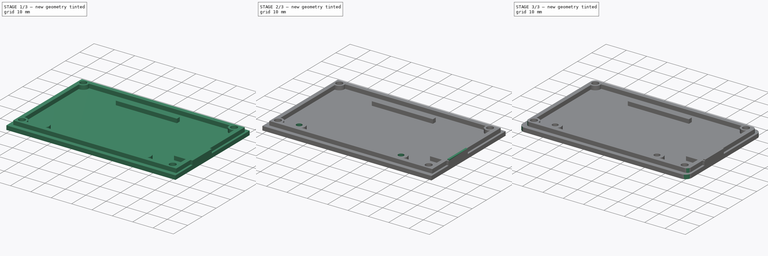
[diagram: build sequence overview — one tinted view per stage of 3, left to right]
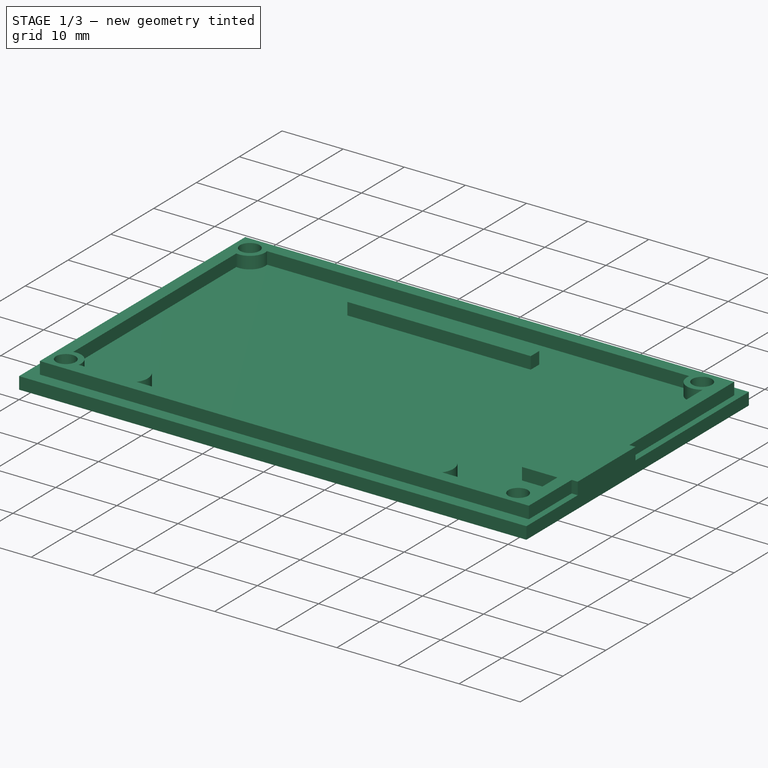
[diagram: stage 1 of 3 — iso view after this stage's code; geometry added in this stage tinted green]
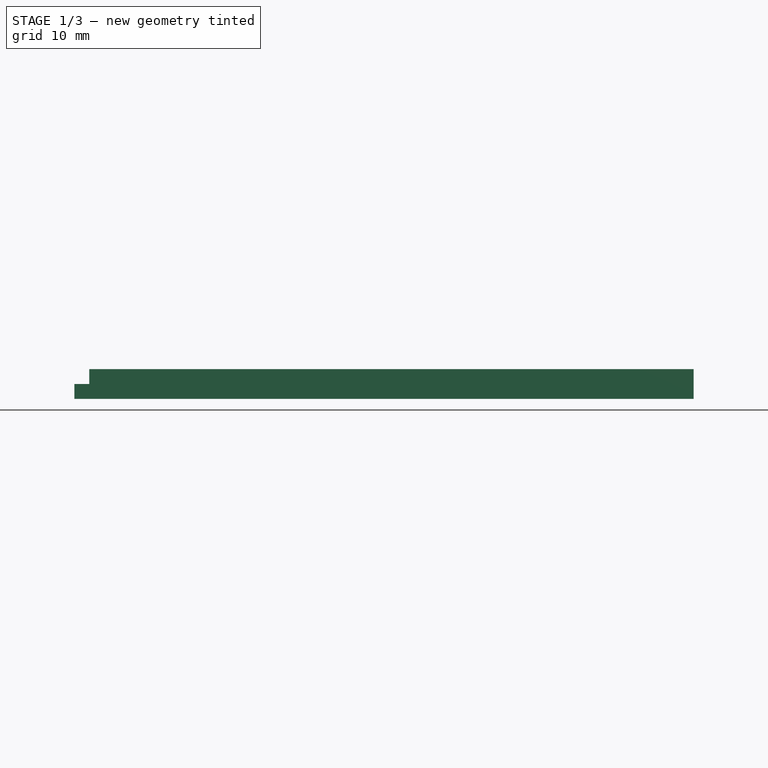
[diagram: stage 1 of 3 — front view after this stage's code; geometry added in this stage tinted green]
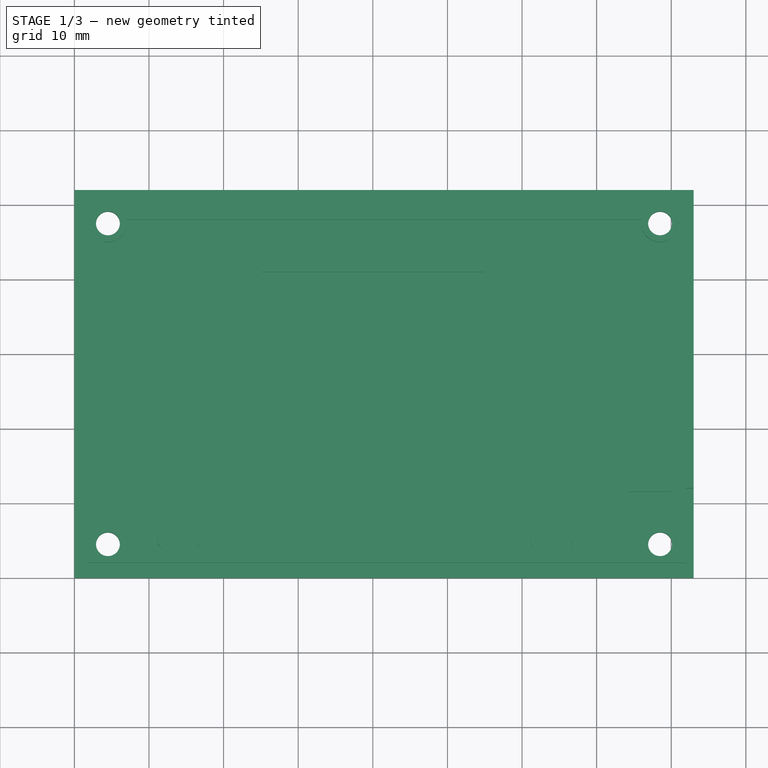
[diagram: stage 1 of 3 — top view after this stage's code; geometry added in this stage tinted green]
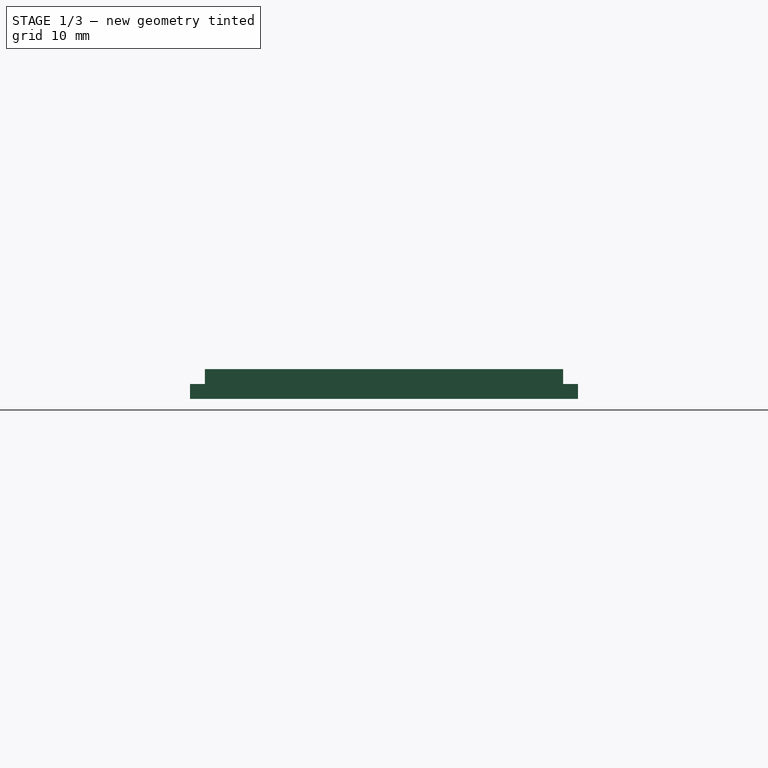
[diagram: stage 1 of 3 — right view after this stage's code; geometry added in this stage tinted green]
FCSTD DOCUMENT  (FreeCAD 0.20R29603 (Git))
Label: mir base_small
License: All rights reserved
LicenseURL: http://en.wikipedia.org/wiki/All_rights_reserved
objects: Sketcher::SketchObject×5, PartDesign::Pad×3, PartDesign::Pocket×2, PartDesign::Fillet×2, PartDesign::Chamfer×1, PartDesign::Body×1
note: 22 computed .brp shape members not serialized (recipe doc carries the construction recipe); baked Part::Feature solids carry a one-line shape summary decoded from their .brp

FEATURE [Sketcher::SketchObject] Sketch  label="SK_Base"
  FullyConstrained = true
  MapMode = 5
  Support = -> [XY_Plane]
  sketch-geometry (4):
    g0: LineSegment StartX=0 StartY=0 StartZ=0 EndX=83 EndY=0 EndZ=0
    g1: LineSegment StartX=83 StartY=0 StartZ=0 EndX=83 EndY=52 EndZ=0
    g2: LineSegment StartX=83 StartY=52 StartZ=0 EndX=0 EndY=52 EndZ=0
    g3: LineSegment StartX=0 StartY=52 StartZ=0 EndX=0 EndY=0 EndZ=0
  constraints (11):
    c: Coincident(g0,g1)
    c: Coincident(g1,g2)
    c: Coincident(g2,g3)
    c: Coincident(g3,g0)
    c: Horizontal(g0)
    c: Horizontal(g2)
    c: Vertical(g1)
    c: Vertical(g3)
    c: Coincident(g0,g-1)
    c: DistanceY(g3,g3) = 52
    c: DistanceX(g2,g2) = 83
FEATURE [Sketcher::SketchObject] Sketch001  label="SK_Erhöhung"
  FullyConstrained = true
  MapMode = 5
  Support = -> [XY_Plane]
  sketch-geometry (29):
    g0: LineSegment StartX=2 StartY=2 StartZ=0 EndX=2 EndY=50 EndZ=0
    g1: LineSegment StartX=2 StartY=50 StartZ=0 EndX=82 EndY=50 EndZ=0
    g2: LineSegment StartX=82 StartY=50 StartZ=0 EndX=82 EndY=25.5 EndZ=0
    g3: LineSegment StartX=82 StartY=25.5 StartZ=0 EndX=83 EndY=25.5 EndZ=0
    g4: LineSegment StartX=83 StartY=25.5 StartZ=0 EndX=83 EndY=12 EndZ=0
    g5: LineSegment StartX=83 StartY=12 StartZ=0 EndX=82 EndY=12 EndZ=0
    g6: LineSegment StartX=82 StartY=12 StartZ=0 EndX=82 EndY=2 EndZ=0
    g7: LineSegment StartX=82 StartY=2 StartZ=0 EndX=2 EndY=2 EndZ=0
    g8: LineSegment StartX=6.95 StartY=47.9975 StartZ=0 EndX=76.05 EndY=47.9975 EndZ=0
    g9: LineSegment StartX=76.05 StartY=4.00251 StartZ=0 EndX=66.4019 EndY=4.00251 EndZ=0
    g10: Circle CenterX=35 CenterY=46 CenterZ=0 NormalX=0 NormalY=0 NormalZ=1 AngleXU=0 Radius=1
    g11: LineSegment StartX=25 StartY=43 StartZ=0 EndX=55 EndY=43 EndZ=0
    g12: LineSegment StartX=55 StartY=43 StartZ=0 EndX=55 EndY=41 EndZ=0
    g13: LineSegment StartX=55 StartY=41 StartZ=0 EndX=25 EndY=41 EndZ=0
    g14: LineSegment StartX=25 StartY=41 StartZ=0 EndX=25 EndY=43 EndZ=0
    g15: ArcOfCircle CenterX=14 CenterY=5.8 CenterZ=0 NormalX=0 NormalY=0 NormalZ=1 AngleXU=0 Radius=3 StartAngle=5.64073 EndAngle=10.0693
    g16: ArcOfCircle CenterX=64 CenterY=5.8 CenterZ=0 NormalX=0 NormalY=0 NormalZ=1 AngleXU=0 Radius=3 StartAngle=5.64073 EndAngle=10.0693
    g17: LineSegment StartX=80 StartY=25.05 StartZ=0 EndX=74.2 EndY=25.05 EndZ=0
    g18: LineSegment StartX=74.2 StartY=25.05 StartZ=0 EndX=74.2 EndY=11.55 EndZ=0
    g19: LineSegment StartX=74.2 StartY=11.55 StartZ=0 EndX=80 EndY=11.55 EndZ=0
    g20: LineSegment StartX=80 StartY=11.55 StartZ=0 EndX=80 EndY=6.5 EndZ=0
    g21: LineSegment StartX=11.6019 StartY=3.9975 StartZ=0 EndX=6.95188 EndY=3.9995 EndZ=0
    g22: LineSegment StartX=61.6019 StartY=3.9975 StartZ=0 EndX=16.4019 EndY=4.00251 EndZ=0
    g23: LineSegment StartX=80 StartY=25.05 StartZ=0 EndX=80 EndY=45.5 EndZ=0
    g24: ArcOfCircle CenterX=4.5 CenterY=47.5 CenterZ=0 NormalX=0 NormalY=0 NormalZ=1 AngleXU=0 Radius=2.5 StartAngle=4.51205 EndAngle=6.48352
    g25: ArcOfCircle CenterX=78.5 CenterY=4.5 CenterZ=0 NormalX=0 NormalY=0 NormalZ=1 AngleXU=0 Radius=2.5 StartAngle=0.927295 EndAngle=3.34193
    g26: ArcOfCircle CenterX=4.50249 CenterY=4.5 CenterZ=0 NormalX=0 NormalY=0 NormalZ=1 AngleXU=0 Radius=2.5 StartAngle=6.08162 EndAngle=8.05533
    g27: ArcOfCircle CenterX=78.5 CenterY=47.5 CenterZ=0 NormalX=0 NormalY=0 NormalZ=1 AngleXU=0 Radius=2.5 StartAngle=2.94126 EndAngle=5.35589
    g28: LineSegment StartX=4.00251 StartY=45.05 StartZ=0 EndX=4.00251 EndY=6.94949 EndZ=0
  constraints (93):
    c: Coincident(g0,g1)
    c: Horizontal(g1)
    c: Vertical(g2)
    c: Coincident(g2,g3)
    c: Horizontal(g3)
    c: Coincident(g3,g4)
    c: Coincident(g4,g5)
    c: Horizontal(g5)
    c: Coincident(g5,g6)
    c: Vertical(g6)
    c: Coincident(g6,g7)
    c: Coincident(g7,g0)
    c: Horizontal(g7)
    c: DistanceX(g1,g1) = 80
    c: DistanceY(g0,g0) = 48
    c: Equal(g1,g7)
    c: DistanceY(g6,g5) = 10
    c: Equal(g5,g3)
    c: Horizontal(g8)
    c: Horizontal(g9)
    c: DistanceY(g4,g4) = 13.5
    c: Diameter(g10) = 2
    c: DistanceX(g0,g10) = 33
    c: DistanceY(g10,g0) = 4
    c: Coincident(g11,g12)
    c: Coincident(g12,g13)
    c: Coincident(g13,g14)
    c: Coincident(g14,g11)
    c: Horizontal(g11)
    c: Horizontal(g13)
    c: Vertical(g12)
    c: Vertical(g14)
    c: DistanceY(g14,g14) = 2
    c: DistanceX(g11,g11) = 30
    c: DistanceY(g11,g10) = 3
    c: DistanceX(g11,g10) = 10
    c: Equal(g15,g16)
    c: Diameter(g15) = 6
    c: DistanceX(g15,g10) = 21
    c: DistanceY(g15,g10) = 40.2
    c: Horizontal(g15,g16)
    c: DistanceX(g15,g16) = 50
    c: Horizontal(g17)
    c: Coincident(g17,g18)
    c: Vertical(g18)
    c: Coincident(g18,g19)
    c: Horizontal(g19)
    c: Coincident(g20,g19)
    c: Equal(g18,g4)
    c: DistanceX(g17,g17) = 5.8
    c: Equal(g19,g17)
    c: DistanceY(g-1,g0) = 2
    c: DistanceX(g-1,g0) = 2
    c: Vertical(g0)
    c: Vertical(g20)
    c: DistanceX(g2,g3) = 1
    c: Coincident(g22,g15)
    c: Coincident(g21,g15)
    c: Coincident(g16,g22)
    c: Coincident(g16,g9)
    c: DistanceX(g22,g22) = 45.2
    c: DistanceX(g15,g15) = 4.8
    c: DistanceX(g16,g9) = 4.8
    c: Coincident(g1,g2)
    c: Coincident(g23,g17)
    c: Equal(g24,g26)
    c: Equal(g24,g25)
    c: Diameter(g24) = 5
    c: DistanceY(g24,g0) = 2.5
    c: DistanceX(g0,g24) = 2.5
    c: Horizontal(g26,g25)
    c: DistanceY(g0,g26) = 2.5
    c: Coincident(g24,g8)
    c: Coincident(g27,g23)
    c: Coincident(g27,g8)
    c: Coincident(g20,g25)
    c: Coincident(g25,g9)
    c: Coincident(g21,g26)
    c: Vertical(g25,g27)
    c: DistanceX(g21,g15) = 4.65
    c: DistanceY(g20,g20) = 5.05
    c: Coincident(g28,g24)
    c: Coincident(g28,g26)
    c: Vertical(g28)
    c: Equal(g4,g18)
    c: DistanceX(g27,g1) = 3.5
    c: Vertical(g9,g8)
    c: Horizontal(g24,g27)
    c: DistanceX(g8,g27) = 2.45
    c: DistanceY(g23,g27) = 2
    c: DistanceY(g25,g20) = 2
    c: Vertical(g23)
    c: DistanceY(g24,g24) = 2.45
FEATURE [Sketcher::SketchObject] Sketch003  label="SK_Schrauben_PCB"
  AttachmentOffset = pos=(0,0,0.5) rot=(0,0,1;0rad)
  ExternalGeometry = -> [Sketch001]
  FullyConstrained = true
  MapMode = 5
  Placement = pos=(0,0,0.5) rot=(0,0,1;0rad)
  Support = -> [XY_Plane]
  sketch-geometry (2):
    g0: Circle CenterX=14 CenterY=5.8 CenterZ=0 NormalX=0 NormalY=0 NormalZ=1 AngleXU=0 Radius=1.375
    g1: Circle CenterX=64 CenterY=5.8 CenterZ=0 NormalX=0 NormalY=0 NormalZ=1 AngleXU=0 Radius=1.375
  constraints (4):
    c: Equal(g0,g1)
    c: Diameter(g0) = 2.75
    c: Coincident(g0,g-3)
    c: Coincident(g1,g-4)
FEATURE [Sketcher::SketchObject] Sketch004  label="SK_Lippe"
  ExternalGeometry = -> [Sketch001]
  FullyConstrained = true
  MapMode = 5
  Support = -> [XY_Plane]
  sketch-geometry (4):
    g0: LineSegment StartX=83 StartY=25.5 StartZ=0 EndX=82 EndY=25.5 EndZ=0
    g1: LineSegment StartX=82 StartY=25.5 StartZ=0 EndX=82 EndY=12.5 EndZ=0
    g2: LineSegment StartX=82 StartY=12.5 StartZ=0 EndX=83 EndY=12.5 EndZ=0
    g3: LineSegment StartX=83 StartY=12.5 StartZ=0 EndX=83 EndY=25.5 EndZ=0
  constraints (11):
    c: Coincident(g0,g1)
    c: Coincident(g1,g2)
    c: Coincident(g2,g3)
    c: Coincident(g3,g0)
    c: Horizontal(g0)
    c: Horizontal(g2)
    c: Vertical(g1)
    c: Vertical(g3)
    c: Coincident(g0,g-3)
    c: DistanceX(g0,g0) = 1
    c: DistanceY(g1,g1) = 13
FEATURE [PartDesign::Pad] Pad  label="Base"
  Direction = (0,0,1)
  Length = 2
  Length2 = 10
  Profile = -> Sketch
  ReferenceAxis = -> Sketch [N_Axis]
  Refine = true
  Reversed = true
  Type = 0
FEATURE [PartDesign::Pad] Pad001  label="Erhgöhung"
  BaseFeature = -> Pad
  Direction = (0,0,1)
  Length = 2
  Length2 = 10
  Profile = -> Sketch001
  ReferenceAxis = -> Sketch001 [N_Axis]
  Refine = true
  Type = 0
FEATURE [Sketcher::SketchObject] Sketch005  label="SK_Schraubendurchgang"
  ExternalGeometry = -> [Sketch001]
  FullyConstrained = true
  MapMode = 5
  Support = -> [XY_Plane]
  sketch-geometry (4):
    g0: Circle CenterX=4.5 CenterY=47.5 CenterZ=0 NormalX=0 NormalY=0 NormalZ=1 AngleXU=0 Radius=1.6
    g1: Circle CenterX=78.5 CenterY=47.5 CenterZ=0 NormalX=0 NormalY=0 NormalZ=1 AngleXU=0 Radius=1.6
    g2: Circle CenterX=78.5 CenterY=4.5 CenterZ=0 NormalX=0 NormalY=0 NormalZ=1 AngleXU=0 Radius=1.6
    g3: Circle CenterX=4.5 CenterY=4.5 CenterZ=0 NormalX=0 NormalY=0 NormalZ=1 AngleXU=0 Radius=1.6
  constraints (12):
    c: Equal(g0,g1)
    c: Equal(g0,g2)
    c: Equal(g0,g3)
    c: Diameter(g0) = 3.2
    c: DistanceX(g-4,g0) = 2.5
    c: DistanceY(g0,g-4) = 2.5
    c: DistanceY(g-3,g3) = 2.5
    c: Vertical(g0,g3)
    c: DistanceX(g1,g-4) = 3.5
    c: Horizontal(g0,g1)
    c: Vertical(g1,g2)
    c: Horizontal(g3,g2)
FEATURE [PartDesign::Pocket] Pocket  label="Schraubendurchgang"
  BaseFeature = -> Pad001
  Direction = (0,0,-1)
  Length = 5
  Length2 = 5
  Profile = -> Sketch005
  ReferenceAxis = -> Sketch005 [N_Axis]
  Refine = true
  Type = 4
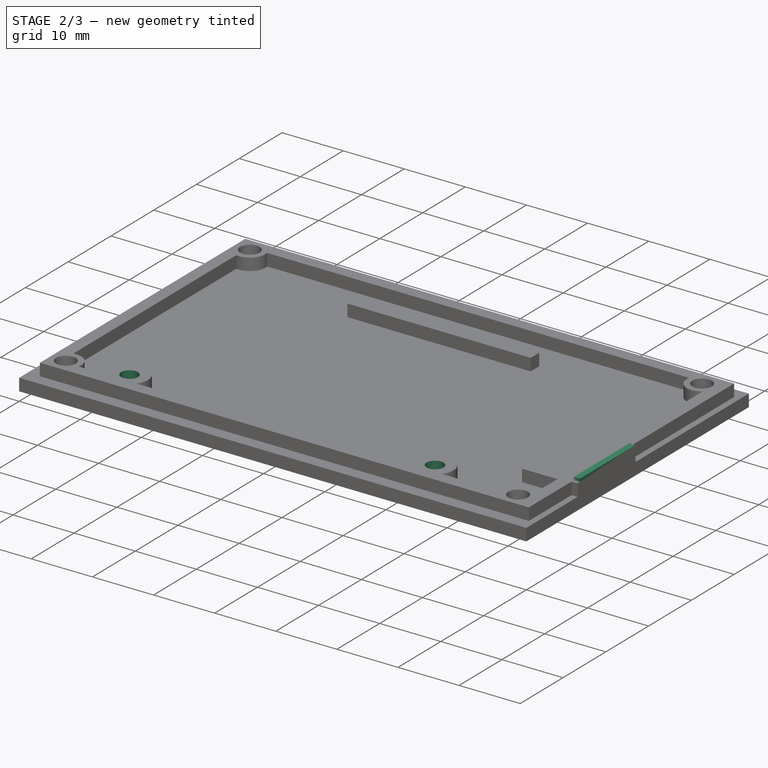
[diagram: stage 2 of 3 — iso view after this stage's code; geometry added in this stage tinted green]
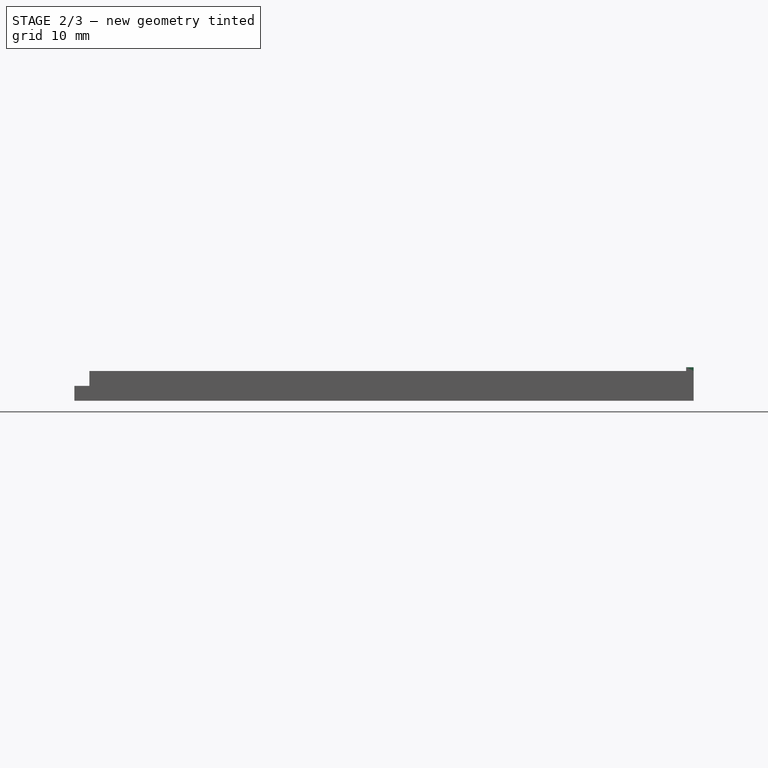
[diagram: stage 2 of 3 — front view after this stage's code; geometry added in this stage tinted green]
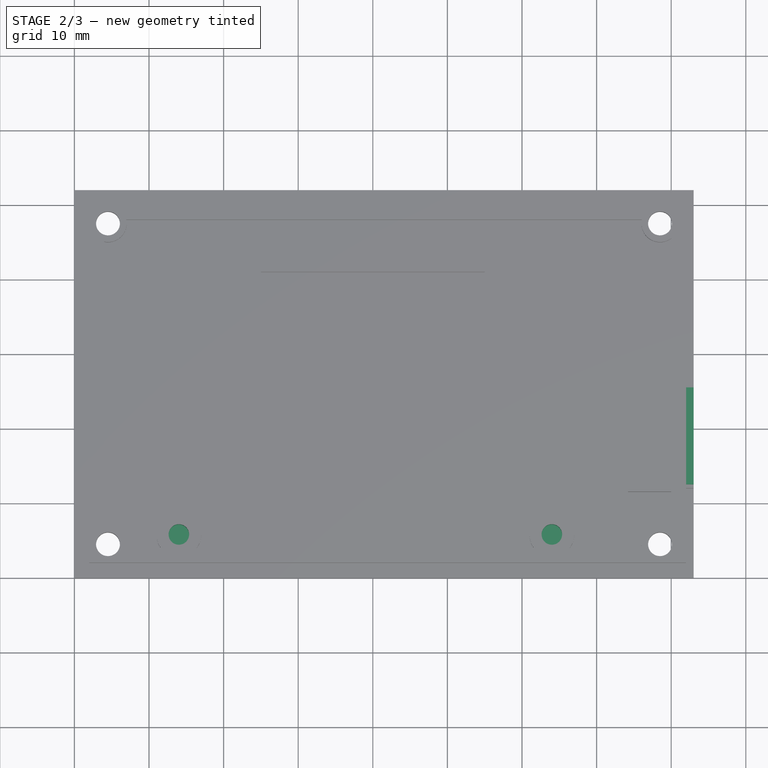
[diagram: stage 2 of 3 — top view after this stage's code; geometry added in this stage tinted green]
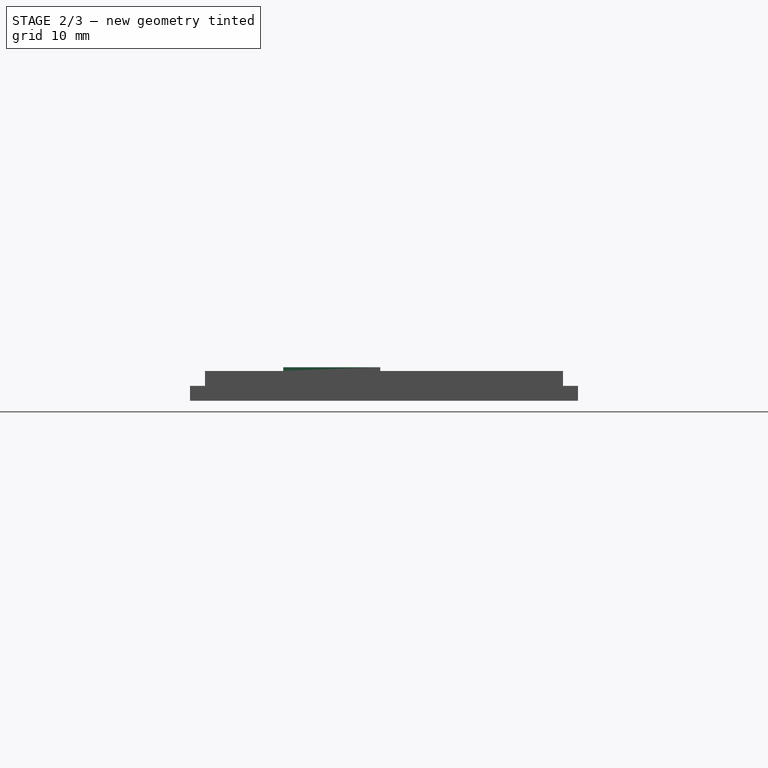
[diagram: stage 2 of 3 — right view after this stage's code; geometry added in this stage tinted green]
FEATURE [PartDesign::Pocket] Pocket001  label="Schrauben_PCB"
  BaseFeature = -> Pocket
  Direction = (0,0,-1)
  Length = 2
  Length2 = 1.5
  Profile = -> Sketch003
  ReferenceAxis = -> Sketch003 [N_Axis]
  Refine = true
  Reversed = true
  Type = 4
FEATURE [PartDesign::Pad] Pad002  label="Lippe"
  BaseFeature = -> Pocket001
  Direction = (0,0,1)
  Length = 2.5
  Length2 = 10
  Profile = -> Sketch004
  ReferenceAxis = -> Sketch004 [N_Axis]
  Refine = true
  Type = 0
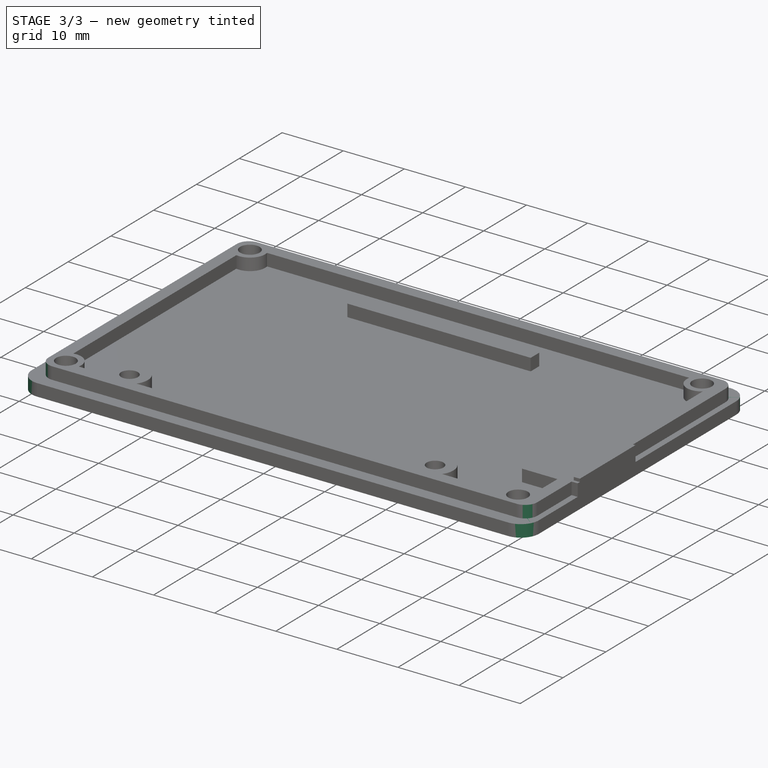
[diagram: stage 3 of 3 — iso view after this stage's code; geometry added in this stage tinted green]
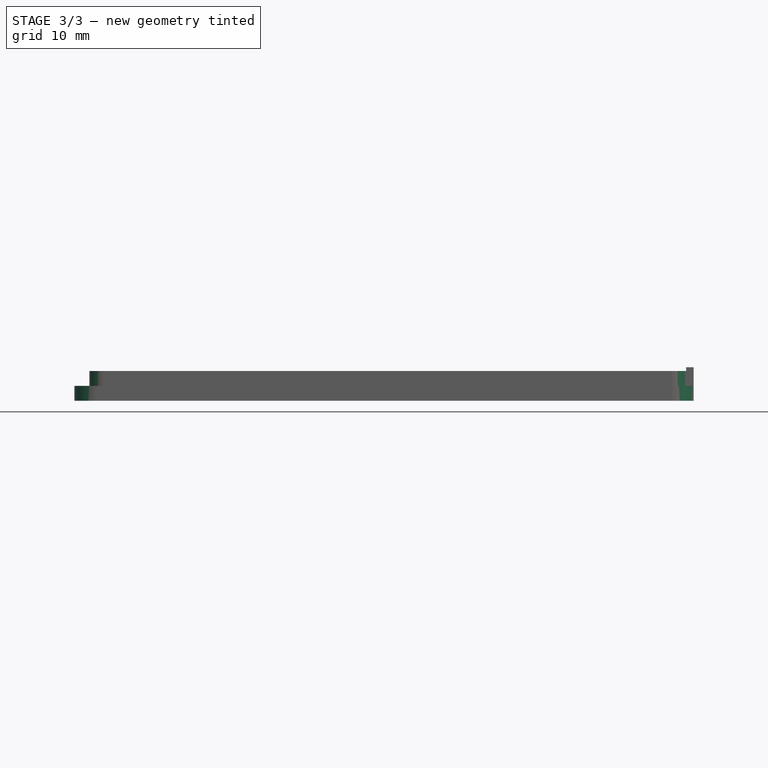
[diagram: stage 3 of 3 — front view after this stage's code; geometry added in this stage tinted green]
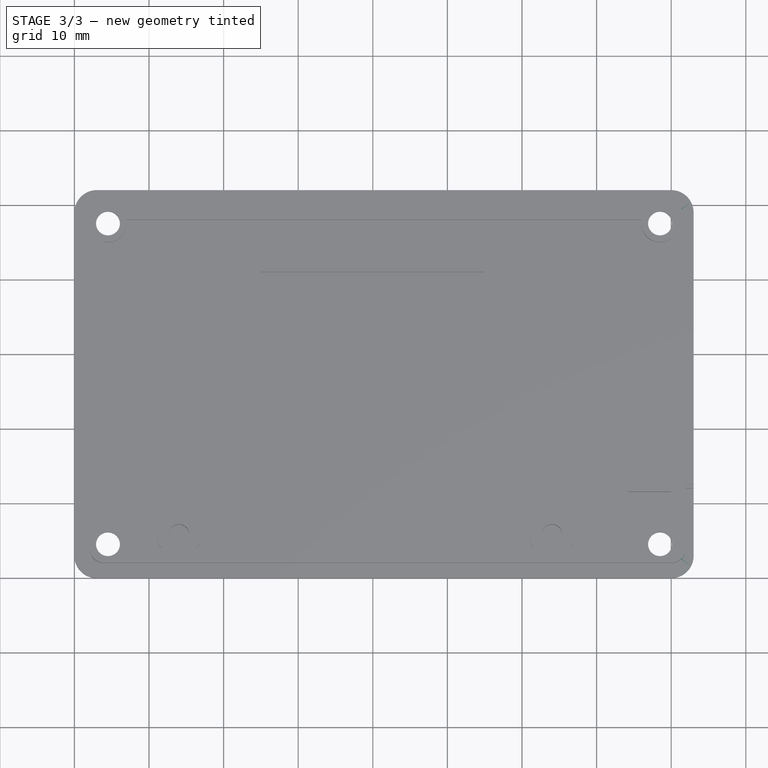
[diagram: stage 3 of 3 — top view after this stage's code; geometry added in this stage tinted green]
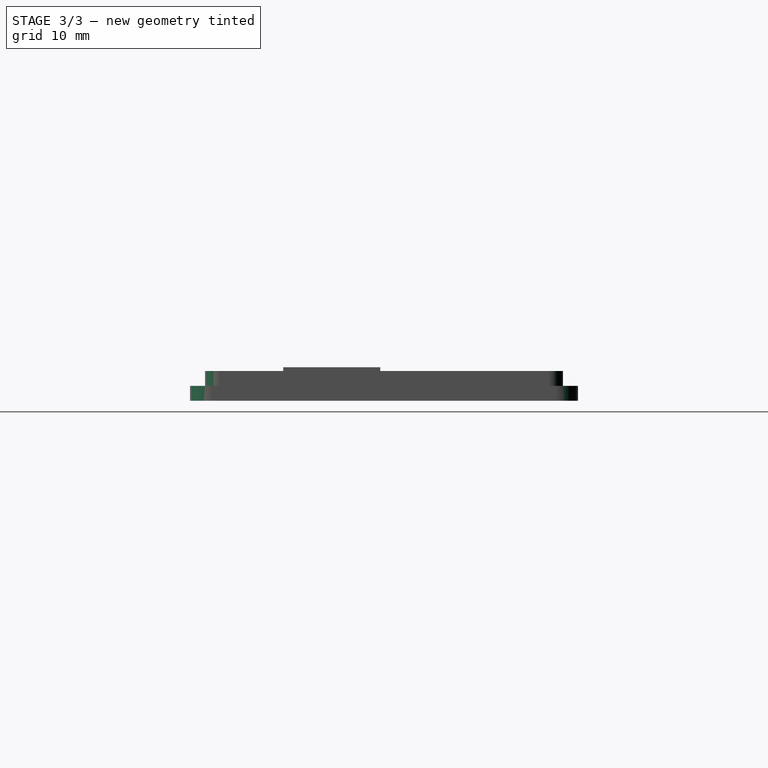
[diagram: stage 3 of 3 — right view after this stage's code; geometry added in this stage tinted green]
FEATURE [PartDesign::Chamfer] Chamfer  label="Versenkung_Schrauben"
  Angle = 45
  Base = -> Pad002 [Edge22,Edge20,Edge21,Edge23]
  BaseFeature = -> Pad002
  ChamferType = 0
  FlipDirection = false
  Refine = true
  Size = 1.95
  Size2 = 1
  SupportTransform = false
  UseAllEdges = false
FEATURE [PartDesign::Fillet] Fillet
  Base = -> Chamfer [Edge17,Edge14,Edge11,Edge12]
  BaseFeature = -> Chamfer
  Radius = 3
  Refine = true
  SupportTransform = false
  UseAllEdges = false
FEATURE [PartDesign::Fillet] Fillet001
  Base = -> Fillet [Edge92,Edge94,Edge91,Edge93]
  BaseFeature = -> Fillet
  Radius = 2
  Refine = true
  SupportTransform = false
  UseAllEdges = false
FEATURE [PartDesign::Body] Body
  Group = -> [Sketch,Sketch001,Sketch003,Sketch004,Pad,Pad001,Sketch005,Pocket,Pocket001,Pad002,Chamfer,Fillet,Fillet001]
  Origin = -> Origin
  Tip = -> Fillet001
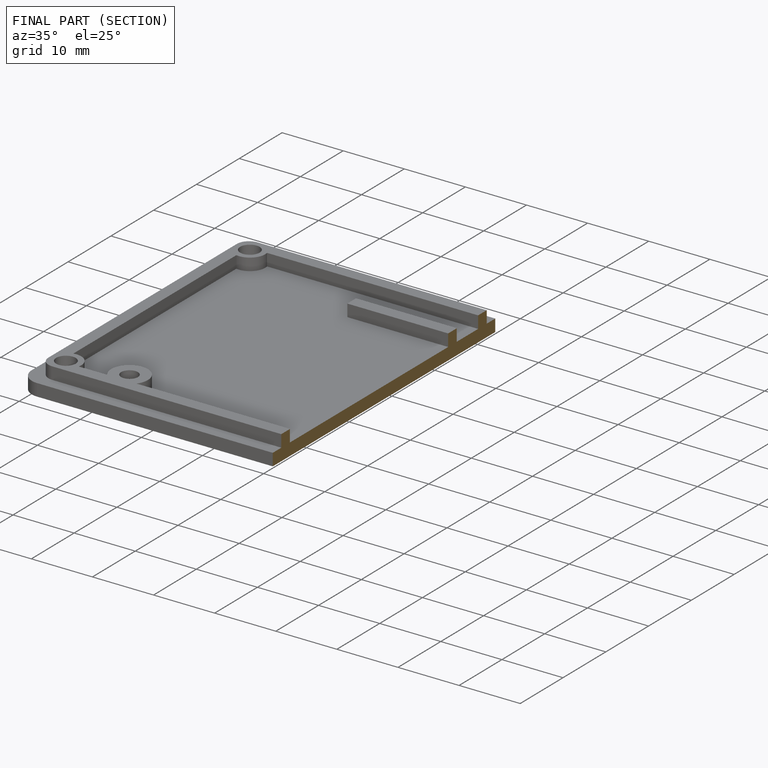
[diagram: finished part — half-section view (interior)]
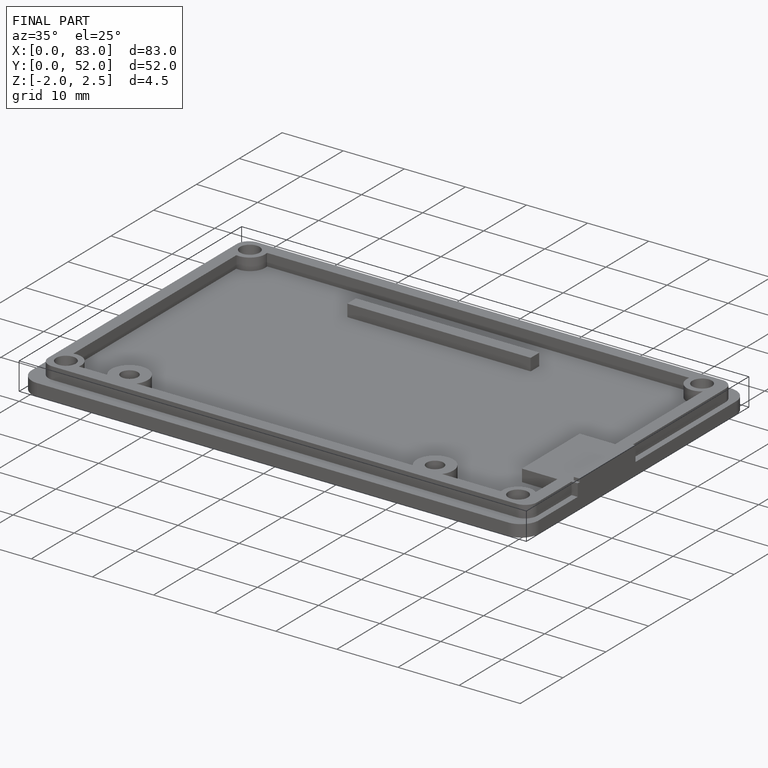
[diagram: finished part — iso view with bounding-box wireframe]
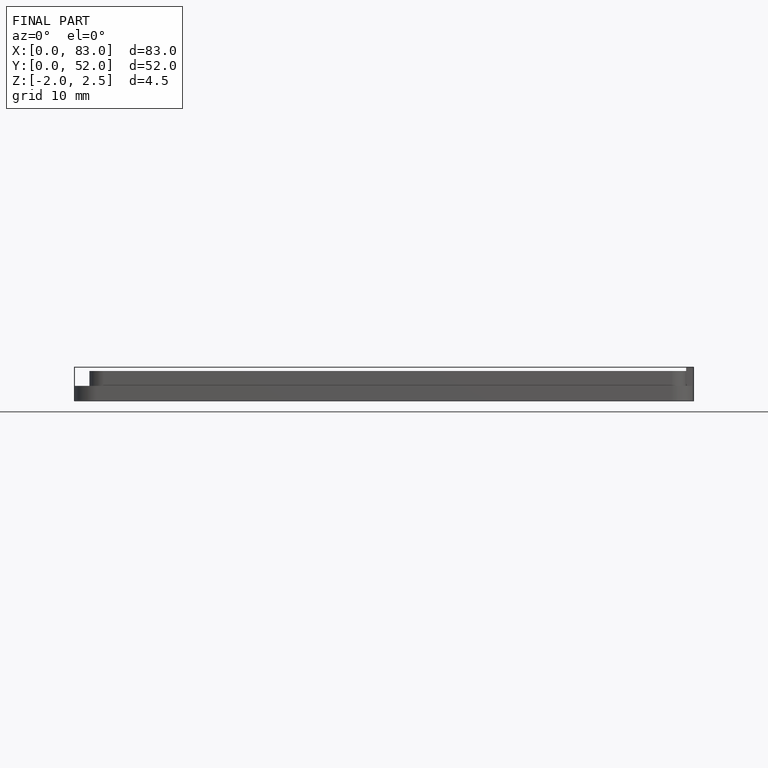
[diagram: finished part — front view with bounding-box wireframe]
